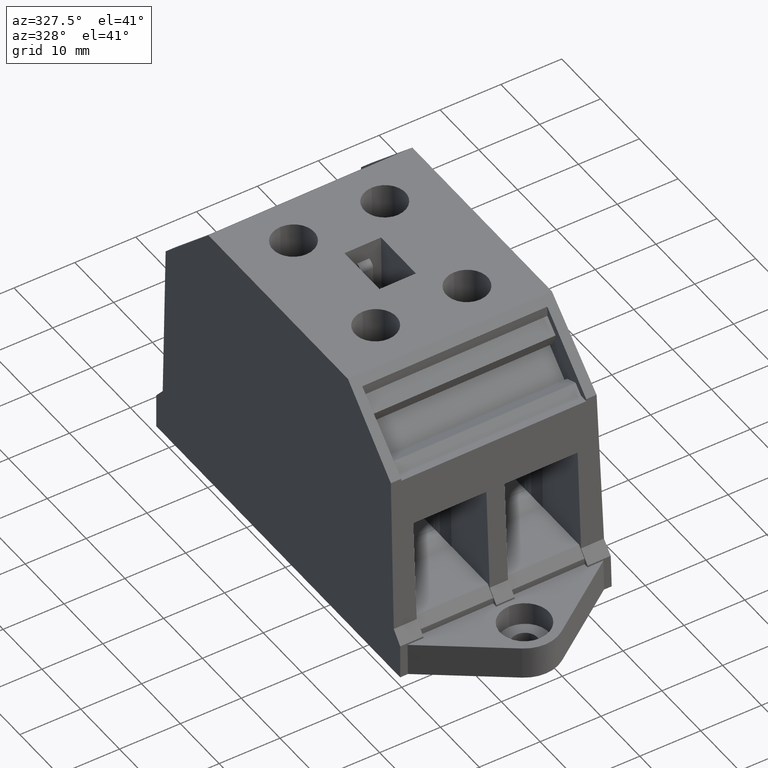
[diagram: clean part render]
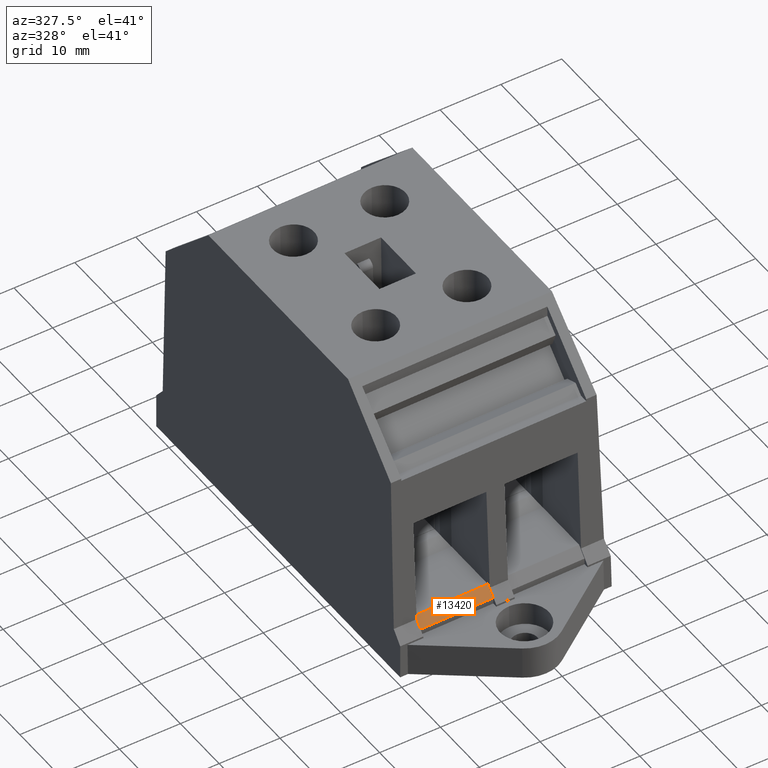
[diagram: same view with one face highlighted and labeled with its STEP entity id]
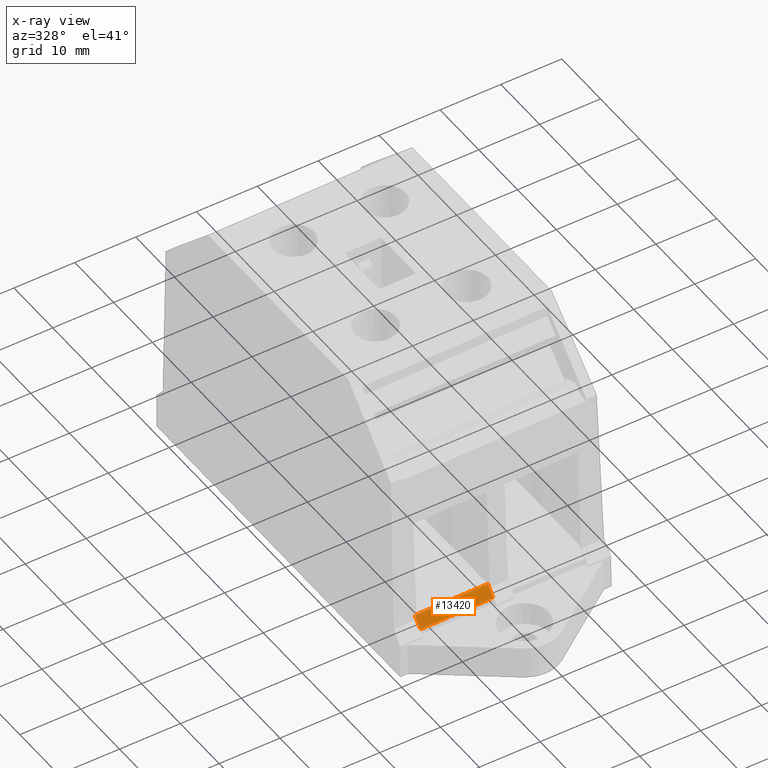
[diagram: x-ray of the same camera — body ghosted, the highlighted face saturated]
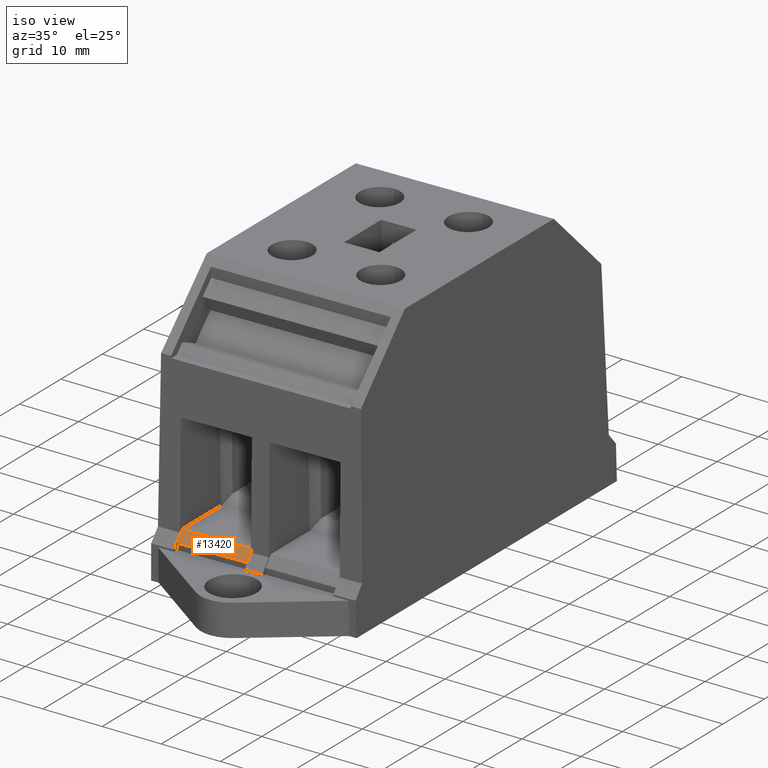
[diagram: same view with one face highlighted and labeled with its STEP entity id]
A machine part, auxiliary view. The second image highlights one B-rep face of the part: STEP entity #13420.
The next image is the same camera in x-ray: the body ghosted, the highlighted face saturated — about 0% of this face is hidden behind the body in this view.
A second angle (iso view) of the same face is appended — the face is thin or edge-on in the first view.
In plain terms, the highlighted planar face has unit normal (-0.009, -0.766, 0.6427).
Its self-contained STEP definition (entity closure, byte-faithful):
#8330=CARTESIAN_POINT('',(92.6972364380725,96.6407808347204,
8.99999999999998));
#8340=VERTEX_POINT('',#8330);
#8370=CARTESIAN_POINT('',(96.8931507477931,91.6402848818934,
8.99999999999998));
#8380=DIRECTION('',(-0.642787609686539,0.766044443118978,
8.32667268468867E-17));
#8390=VECTOR('',#8380,1.);
#8400=LINE('',#8370,#8390);
#8410=CARTESIAN_POINT('',(91.3633264749548,98.2304728254631,
8.99999999999999));
#8420=VERTEX_POINT('',#8410);
#8430=EDGE_CURVE('',#8340,#8420,#8400,.T.);
#12780=CARTESIAN_POINT('',(91.3633264749548,98.2304728254631,21.));
#12790=VERTEX_POINT('',#12780);
#12820=CARTESIAN_POINT('',(96.8931507477931,91.6402848818934,21.));
#12830=DIRECTION('',(-0.642787609686539,0.766044443118978,
8.32667268468867E-17));
#12840=VECTOR('',#12830,1.);
#12850=LINE('',#12820,#12840);
#12860=CARTESIAN_POINT('',(92.6972364380725,96.6407808347204,21.));
#12870=VERTEX_POINT('',#12860);
#12880=EDGE_CURVE('',#12870,#12790,#12850,.T.);
#13210=CARTESIAN_POINT('',(92.0886817450933,97.3660280763685,15.));
#13220=DIRECTION('',(0.766044443118978,0.642787609686539,
-4.24747186181651E-17));
#13230=DIRECTION('',(-5.54468072964902E-17,-0.,-1.));
#13240=AXIS2_PLACEMENT_3D('',#13210,#13220,#13230);
#13250=PLANE('',#13240);
#13260=ORIENTED_EDGE('',*,*,#12880,.F.);
#13270=CARTESIAN_POINT('',(91.3633264749548,98.2304728254631,
18.8700046277446));
#13280=DIRECTION('',(1.41411518628295E-18,-6.77642086470657E-17,-1.));
#13290=VECTOR('',#13280,1.);
#13300=LINE('',#13270,#13290);
#13310=EDGE_CURVE('',#12790,#8420,#13300,.T.);
#13320=ORIENTED_EDGE('',*,*,#13310,.F.);
#13330=ORIENTED_EDGE('',*,*,#8430,.T.);
#13340=CARTESIAN_POINT('',(92.6972364380725,96.6407808347203,15.));
#13350=DIRECTION('',(6.05186838565177E-17,-6.04442711160718E-18,1.));
#13360=VECTOR('',#13350,1.);
#13370=LINE('',#13340,#13360);
#13380=EDGE_CURVE('',#8340,#12870,#13370,.T.);
#13390=ORIENTED_EDGE('',*,*,#13380,.F.);
#13400=EDGE_LOOP('',(#13390,#13330,#13320,#13260));
#13410=FACE_OUTER_BOUND('',#13400,.T.);
#13420=ADVANCED_FACE('',(#13410),#13250,.T.);